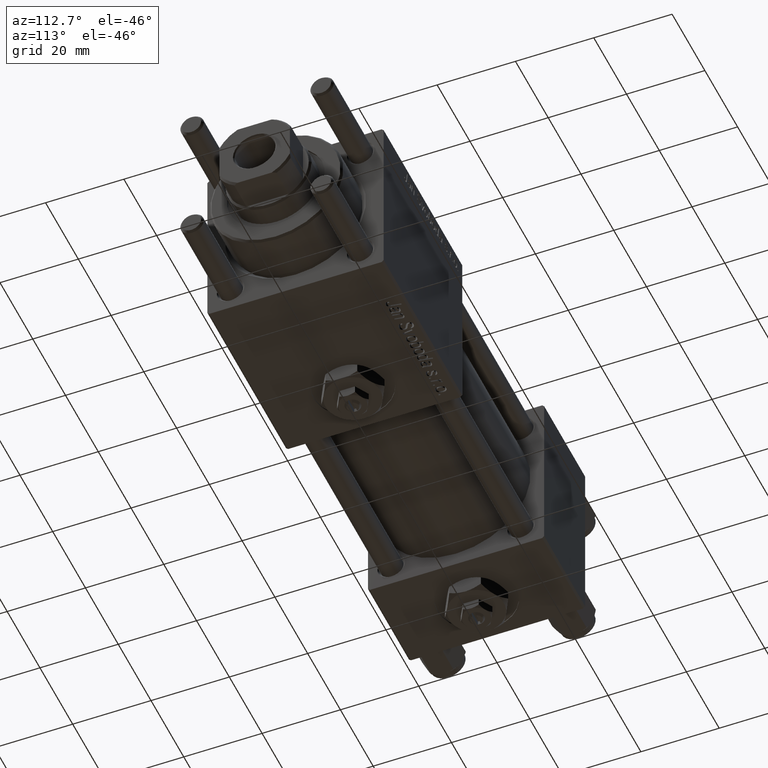
[diagram: clean part render]
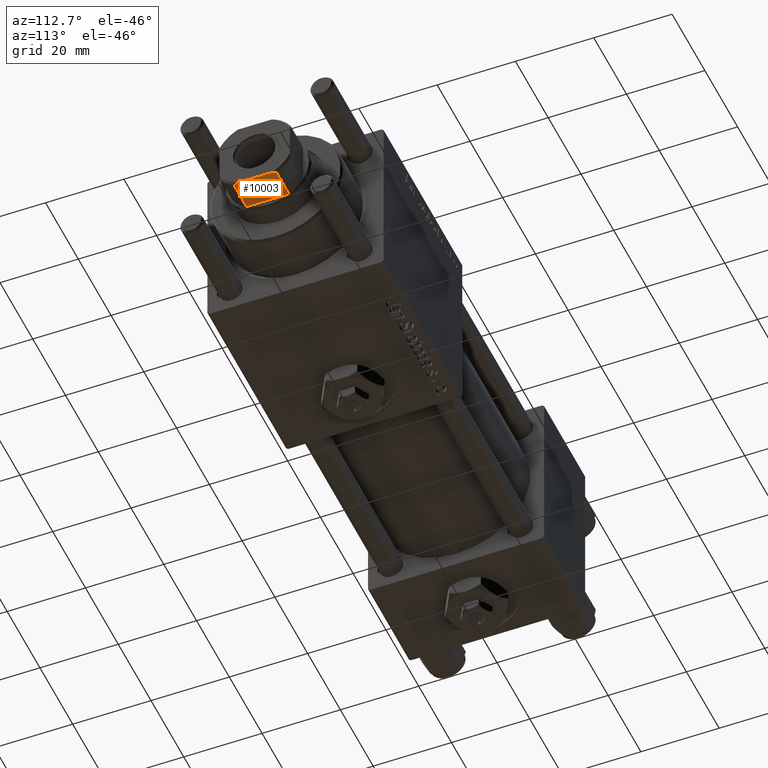
[diagram: same view with one face highlighted and labeled with its STEP entity id]
A machine part, auxiliary view. The second image highlights one B-rep face of the part: STEP entity #10003.
In plain terms, the highlighted planar face has unit normal (0, -0, 1).
Its self-contained STEP definition (entity closure, byte-faithful):
#1005 = LINE ( 'NONE', #7158, #56567 ) ;
#1282 = CARTESIAN_POINT ( 'NONE',  ( 4.358898943540597593, 8.999999999999998224, 123.0000000000000000 ) ) ;
#1890 = VECTOR ( 'NONE', #30402, 1000.000000000000000 ) ;
#2828 = LINE ( 'NONE', #11461, #24775 ) ;
#4320 = VERTEX_POINT ( 'NONE', #52864 ) ;
#4704 = CARTESIAN_POINT ( 'NONE',  ( -4.714305797500250250, 8.999999999999998224, 122.8450817439748448 ) ) ;
#5922 = CARTESIAN_POINT ( 'NONE',  ( 5.408326913195989682, 8.999999999999998224, 122.4999999999999716 ) ) ;
#7158 = CARTESIAN_POINT ( 'NONE',  ( -5.408326913195988794, 8.999999999999998224, -0.001000000000001000089 ) ) ;
#9516 = FACE_OUTER_BOUND ( 'NONE', #55113, .T. ) ;
#10003 = ADVANCED_FACE ( 'NONE', ( #9516 ), #22004, .F. ) ;
#10721 = CARTESIAN_POINT ( 'NONE',  ( 5.408326913195989682, 8.999999999999998224, 122.4999999999999716 ) ) ;
#11461 = CARTESIAN_POINT ( 'NONE',  ( 5.408326913195989682, 8.999999999999998224, -0.001000000000001000089 ) ) ;
#12821 = LINE ( 'NONE', #30368, #33628 ) ;
#14124 = VERTEX_POINT ( 'NONE', #10721 ) ;
#17411 = EDGE_CURVE ( 'NONE', #4320, #14124, #2828, .T. ) ;
#17786 = CARTESIAN_POINT ( 'NONE',  ( -5.408326913195988794, 8.999999999999998224, 122.5000000000000000 ) ) ;
#17952 = CARTESIAN_POINT ( 'NONE',  ( -4.358898943540671311, 8.999999999999998224, 123.0000000000000000 ) ) ;
#18080 = CARTESIAN_POINT ( 'NONE',  ( -5.063687070142449009, 8.999999999999998224, 122.6775166608139216 ) ) ;
#18719 = EDGE_CURVE ( 'NONE', #24126, #49024, #40520, .T. ) ;
#21149 = DIRECTION ( 'NONE',  ( -1.000000000000000000, -0.000000000000000000, -0.000000000000000000 ) ) ;
#21474 = CARTESIAN_POINT ( 'NONE',  ( -9.000000000000003553, 8.999999999999998224, 123.0000000000000000 ) ) ;
#22004 = PLANE ( 'NONE',  #48280 ) ;
#22704 = B_SPLINE_CURVE_WITH_KNOTS ( 'NONE', 3,
 ( #17786, #18080, #4704, #22827 ),
 .UNSPECIFIED., .F., .F.,
 ( 4, 4 ),
 ( 0.000000000000000000, 0.001162453897363196044 ),
 .UNSPECIFIED. ) ;
#22827 = CARTESIAN_POINT ( 'NONE',  ( -4.358898943540671311, 8.999999999999998224, 123.0000000000000000 ) ) ;
#24126 = VERTEX_POINT ( 'NONE', #1282 ) ;
#24355 = CARTESIAN_POINT ( 'NONE',  ( 5.063687070142423252, 8.999999999999998224, 122.6775166608138932 ) ) ;
#24775 = VECTOR ( 'NONE', #52506, 1000.000000000000000 ) ;
#25292 = DIRECTION ( 'NONE',  ( -0.000000000000000000, -0.000000000000000000, 1.000000000000000000 ) ) ;
#28218 = DIRECTION ( 'NONE',  ( 0.000000000000000000, -1.000000000000000000, 0.000000000000000000 ) ) ;
#30368 = CARTESIAN_POINT ( 'NONE',  ( -9.000000000000003553, 8.999999999999998224, 115.0000000000000000 ) ) ;
#30402 = DIRECTION ( 'NONE',  ( -1.000000000000000000, -0.000000000000000000, -0.000000000000000000 ) ) ;
#31589 = VERTEX_POINT ( 'NONE', #33590 ) ;
#32794 = EDGE_CURVE ( 'NONE', #4320, #31589, #12821, .T. ) ;
#32987 = CARTESIAN_POINT ( 'NONE',  ( 4.714305797500202289, 8.999999999999998224, 122.8450817439748306 ) ) ;
#33590 = CARTESIAN_POINT ( 'NONE',  ( -5.408326913195987018, 8.999999999999998224, 115.0000000000000284 ) ) ;
#33628 = VECTOR ( 'NONE', #21149, 1000.000000000000000 ) ;
#34258 = CARTESIAN_POINT ( 'NONE',  ( -5.408326913195988794, 8.999999999999998224, 122.5000000000000000 ) ) ;
#37442 = DIRECTION ( 'NONE',  ( 0.000000000000000000, -0.000000000000000000, -1.000000000000000000 ) ) ;
#37450 = CARTESIAN_POINT ( 'NONE',  ( 4.358898943540597593, 8.999999999999998224, 123.0000000000000000 ) ) ;
#39347 = ORIENTED_EDGE ( 'NONE', *, *, #32794, .T. ) ;
#40520 = LINE ( 'NONE', #21474, #1890 ) ;
#40641 = EDGE_CURVE ( 'NONE', #31589, #47552, #1005, .T. ) ;
#42243 = ORIENTED_EDGE ( 'NONE', *, *, #18719, .F. ) ;
#42947 = EDGE_CURVE ( 'NONE', #24126, #14124, #44832, .T. ) ;
#44328 = ORIENTED_EDGE ( 'NONE', *, *, #17411, .F. ) ;
#44832 = B_SPLINE_CURVE_WITH_KNOTS ( 'NONE', 3,
 ( #37450, #32987, #24355, #5922 ),
 .UNSPECIFIED., .F., .F.,
 ( 4, 4 ),
 ( 8.673617379884035472E-19, 0.001162453897363272806 ),
 .UNSPECIFIED. ) ;
#47552 = VERTEX_POINT ( 'NONE', #34258 ) ;
#48280 = AXIS2_PLACEMENT_3D ( 'NONE', #49986, #28218, #37442 ) ;
#49024 = VERTEX_POINT ( 'NONE', #17952 ) ;
#49364 = ORIENTED_EDGE ( 'NONE', *, *, #55006, .T. ) ;
#49369 = ORIENTED_EDGE ( 'NONE', *, *, #42947, .T. ) ;
#49986 = CARTESIAN_POINT ( 'NONE',  ( -9.000000000000003553, 8.999999999999998224, 123.0000000000000000 ) ) ;
#52506 = DIRECTION ( 'NONE',  ( -0.000000000000000000, -0.000000000000000000, 1.000000000000000000 ) ) ;
#52864 = CARTESIAN_POINT ( 'NONE',  ( 5.408326913195989682, 8.999999999999998224, 115.0000000000000284 ) ) ;
#55006 = EDGE_CURVE ( 'NONE', #47552, #49024, #22704, .T. ) ;
#55113 = EDGE_LOOP ( 'NONE', ( #42243, #49369, #44328, #39347, #57491, #49364 ) ) ;
#56567 = VECTOR ( 'NONE', #25292, 1000.000000000000000 ) ;
#57491 = ORIENTED_EDGE ( 'NONE', *, *, #40641, .T. ) ;